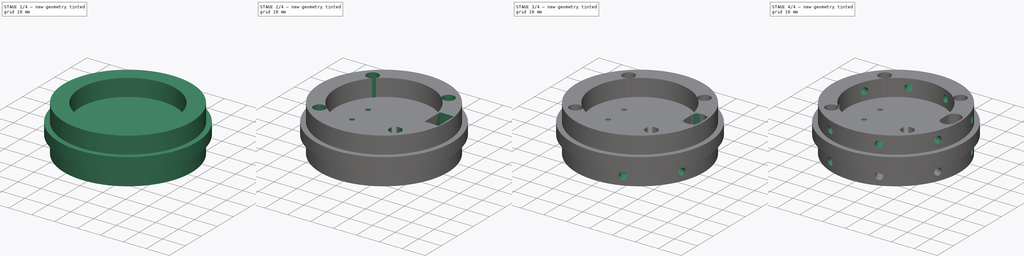
[diagram: build sequence overview — one tinted view per stage of 4, left to right]
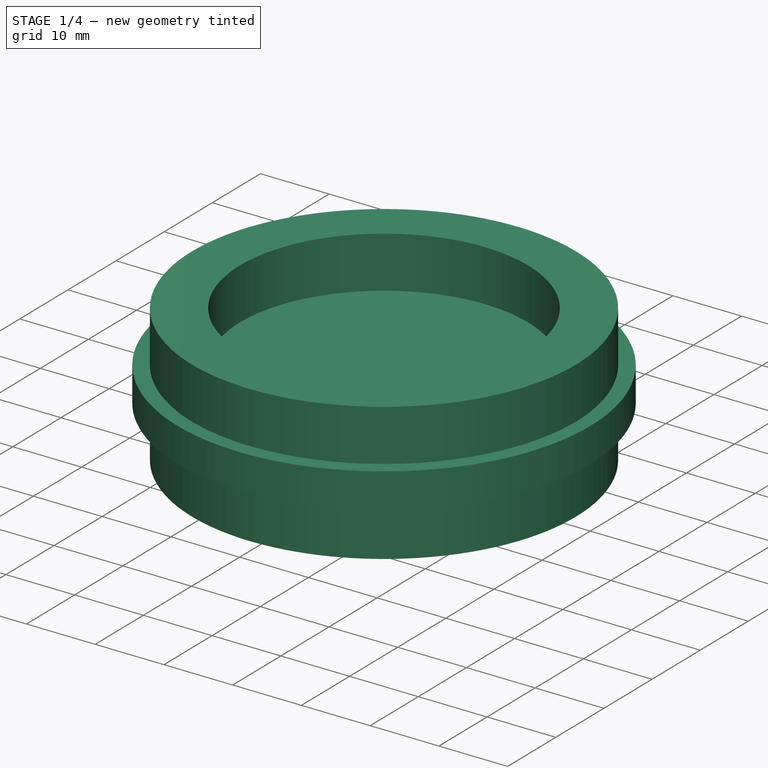
[diagram: stage 1 of 4 — iso view after this stage's code; geometry added in this stage tinted green]
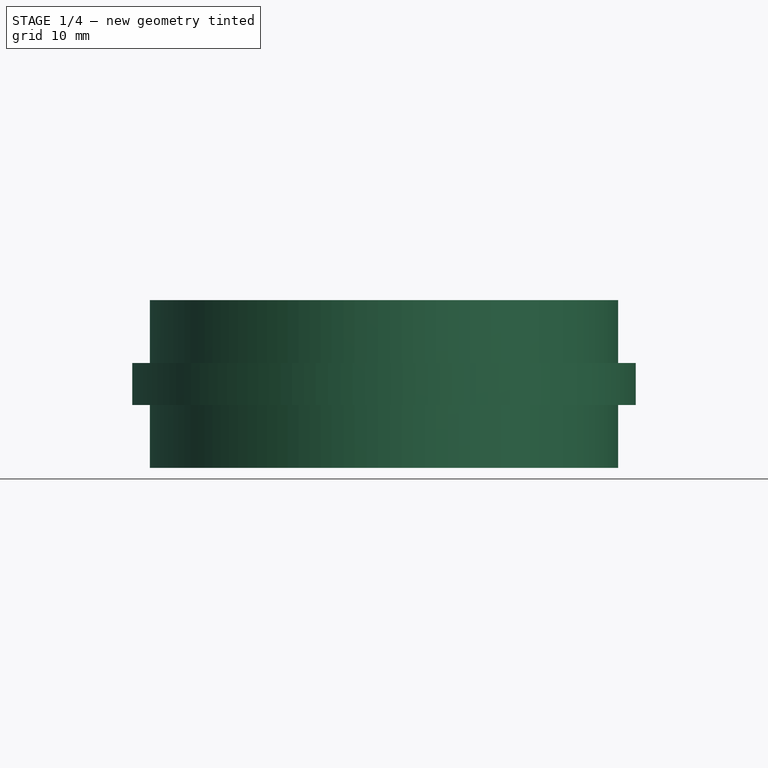
[diagram: stage 1 of 4 — front view after this stage's code; geometry added in this stage tinted green]
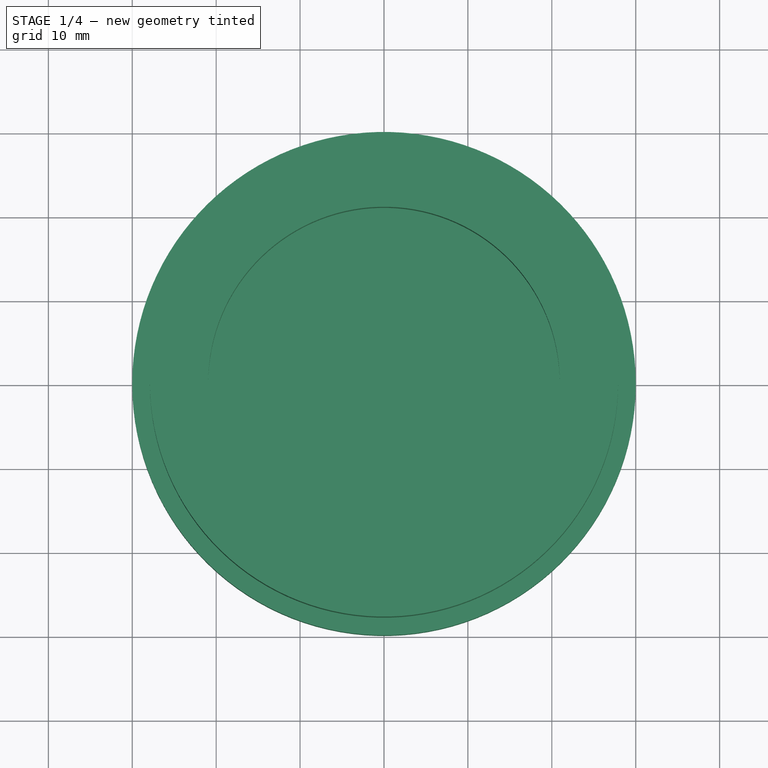
[diagram: stage 1 of 4 — top view after this stage's code; geometry added in this stage tinted green]
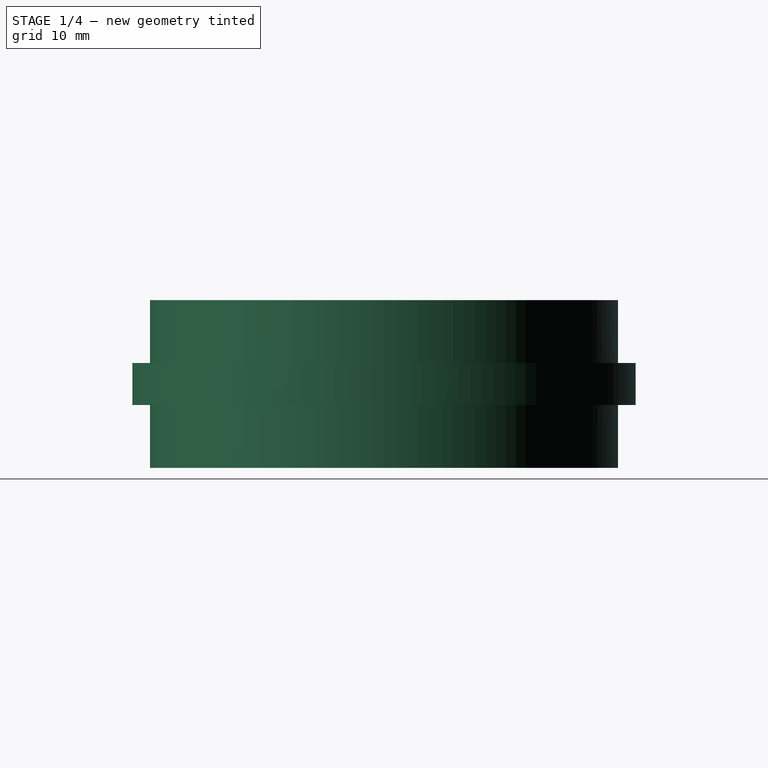
[diagram: stage 1 of 4 — right view after this stage's code; geometry added in this stage tinted green]
FCSTD DOCUMENT  (FreeCAD 1.0R39319 (Git))
Label: low_chute_ret
License: All rights reserved
objects: Sketcher::SketchObject×13, PartDesign::Pocket×8, PartDesign::Plane×4, PartDesign::Pad×3, PartDesign::PolarPattern×2, PartDesign::Fillet×1, PartDesign::Body×1
note: 71 computed .brp shape members not serialized (recipe doc carries the construction recipe); baked Part::Feature solids carry a one-line shape summary decoded from their .brp

FEATURE [Sketcher::SketchObject] Sketch
  ArcFitTolerance = 1e-06
  AttachmentSupport = -> [XY_Plane]
  FullyConstrained = true
  MakeInternals = false
  MapMode = 5
  sketch-geometry (1):
    g0: Circle CenterX=0 CenterY=0 CenterZ=0 NormalX=0 NormalY=0 NormalZ=1 AngleXU=0 Radius=27.9
  constraints (2):
    c: Diameter(g0) = 55.8
    c: Coincident(g0,g-1)
FEATURE [PartDesign::Pad] Pad
  Direction = (0,0,1)
  Length = 7.5
  Length2 = 10
  Profile = -> Sketch
  ReferenceAxis = -> Sketch [N_Axis]
  Refine = true
  Suppressed = false
  Type = 0
FEATURE [Sketcher::SketchObject] Sketch001
  ArcFitTolerance = 1e-06
  AttachmentSupport = -> [Pad]
  FullyConstrained = true
  MakeInternals = false
  MapMode = 5
  Placement = pos=(0,0,7.5) rot=(0,0,1;0rad)
  sketch-geometry (1):
    g0: Circle CenterX=0 CenterY=0 CenterZ=0 NormalX=0 NormalY=0 NormalZ=1 AngleXU=0 Radius=30
  constraints (2):
    c: Diameter(g0) = 60
    c: Coincident(g0,g-1)
FEATURE [PartDesign::Pad] Pad001
  BaseFeature = -> Pad
  Direction = (0,0,1)
  Length = 5
  Length2 = 10
  Profile = -> Sketch001
  ReferenceAxis = -> Sketch001 [N_Axis]
  Refine = true
  Suppressed = false
  Type = 0
FEATURE [Sketcher::SketchObject] Sketch002
  ArcFitTolerance = 1e-06
  AttachmentSupport = -> [Pad001]
  FullyConstrained = true
  MakeInternals = false
  MapMode = 5
  Placement = pos=(0,0,12.5) rot=(0,0,1;0rad)
  sketch-geometry (1):
    g0: Circle CenterX=0 CenterY=0 CenterZ=0 NormalX=0 NormalY=0 NormalZ=1 AngleXU=0 Radius=27.9
  constraints (2):
    c: Diameter(g0) = 55.8
    c: Coincident(g0,g-1)
FEATURE [PartDesign::Pad] Pad002
  BaseFeature = -> Pad001
  Direction = (0,0,1)
  Length = 7.5
  Length2 = 10
  Profile = -> Sketch002
  ReferenceAxis = -> Sketch002 [N_Axis]
  Refine = true
  Suppressed = false
  Type = 0
FEATURE [Sketcher::SketchObject] Sketch003
  ArcFitTolerance = 1e-06
  AttachmentSupport = -> [Pad002]
  FullyConstrained = true
  MakeInternals = false
  MapMode = 5
  Placement = pos=(0,0,20) rot=(0,0,1;0rad)
  sketch-geometry (1):
    g0: Circle CenterX=0 CenterY=0 CenterZ=0 NormalX=0 NormalY=0 NormalZ=1 AngleXU=0 Radius=20.95
  constraints (3):
    c: Diameter(g0) = 41.9
    c: PointOnObject(g0,g-2)
    c: PointOnObject(g0,g-1)
FEATURE [PartDesign::Pocket] Pocket  label="tasca_superiore"
  BaseFeature = -> Pad002
  Direction = (0,0,-1)
  Length = 7.5
  Length2 = 5
  Profile = -> Sketch003
  ReferenceAxis = -> Sketch003 [N_Axis]
  Refine = true
  Suppressed = false
  Type = 0
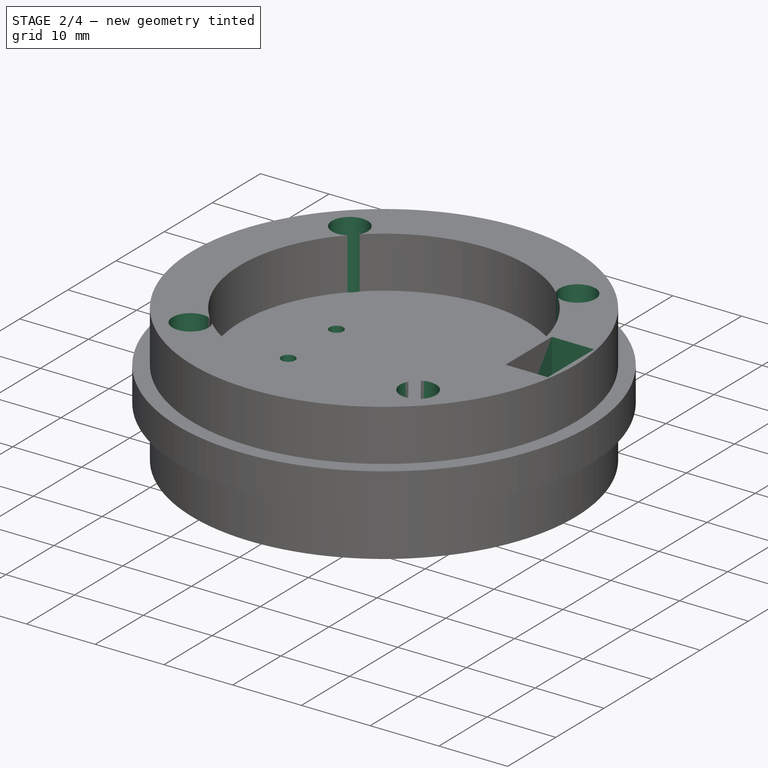
[diagram: stage 2 of 4 — iso view after this stage's code; geometry added in this stage tinted green]
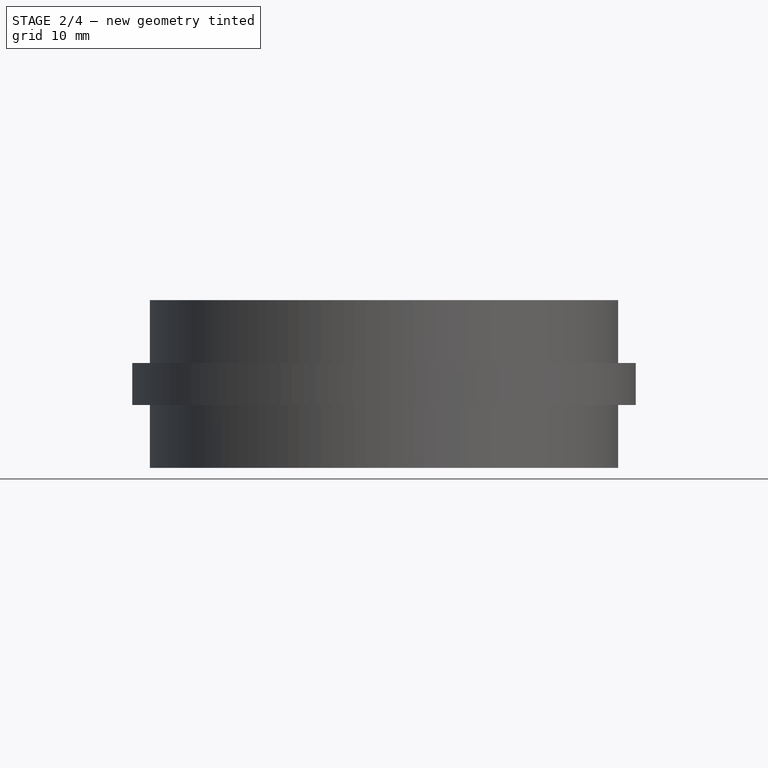
[diagram: stage 2 of 4 — front view after this stage's code; geometry added in this stage tinted green]
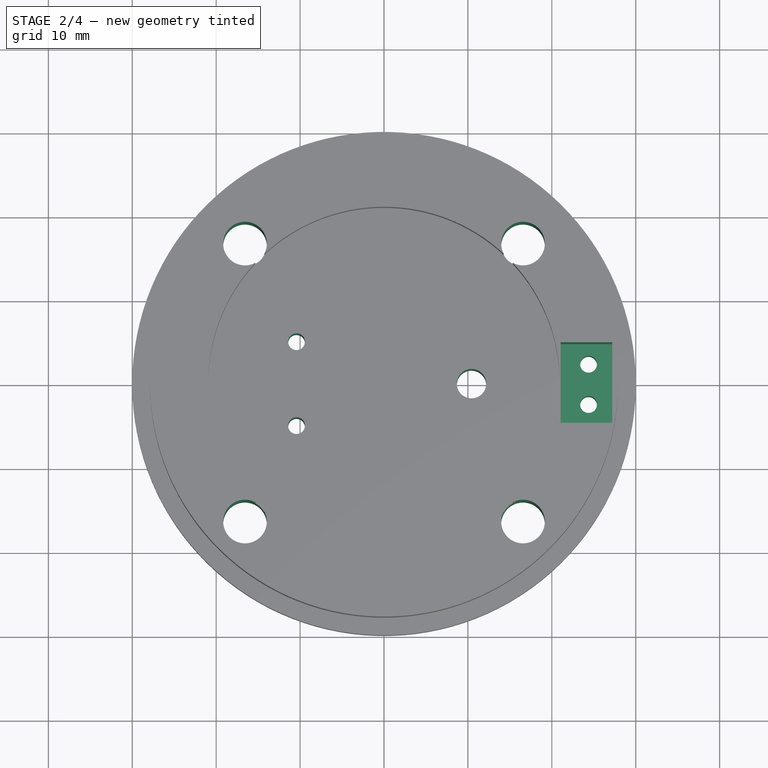
[diagram: stage 2 of 4 — top view after this stage's code; geometry added in this stage tinted green]
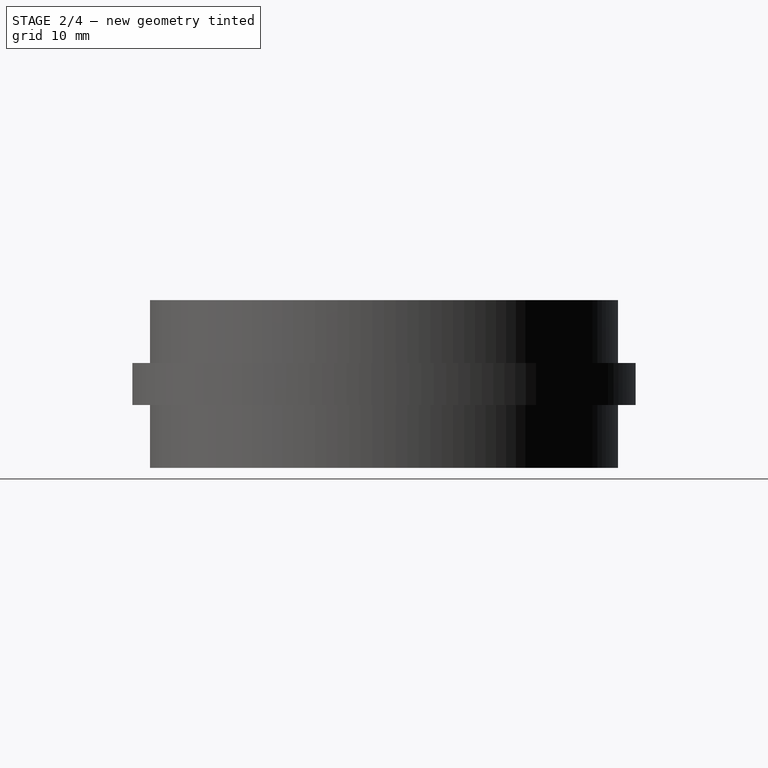
[diagram: stage 2 of 4 — right view after this stage's code; geometry added in this stage tinted green]
FEATURE [Sketcher::SketchObject] Sketch004
  ArcFitTolerance = 1e-06
  AttachmentSupport = -> [Pocket]
  ExternalGeometry = -> [Pocket]
  FullyConstrained = true
  MakeInternals = false
  MapMode = 5
  Placement = pos=(0,0,20) rot=(0,0,1;0rad)
  sketch-geometry (6):
    g0: LineSegment [constr] StartX=0 StartY=0 StartZ=0 EndX=16.566 EndY=16.566 EndZ=0
    g1: Circle CenterX=16.566 CenterY=16.566 CenterZ=0 NormalX=0 NormalY=0 NormalZ=1 AngleXU=0 Radius=2.6
    g2: Circle CenterX=16.566 CenterY=-16.566 CenterZ=0 NormalX=0 NormalY=0 NormalZ=1 AngleXU=0 Radius=2.6
    g3: Circle CenterX=-16.566 CenterY=-16.566 CenterZ=0 NormalX=0 NormalY=0 NormalZ=1 AngleXU=0 Radius=2.6
    g4: Circle CenterX=-16.566 CenterY=16.566 CenterZ=0 NormalX=0 NormalY=0 NormalZ=1 AngleXU=0 Radius=2.6
    g5: LineSegment [constr] StartX=-14.8139 StartY=-14.8139 StartZ=0 EndX=-14.7276 EndY=-14.7275 EndZ=0
  constraints (15):
    c: Distance(g0) = 23.4279
    c: Angle(g-1,g0) = 0.785398
    c: Coincident(g0,g-1)
    c: Diameter(g1) = 5.2
    c: Coincident(g1,g0)
    c: Diameter(g2) = 5.2
    c: Diameter(g3) = 5.2
    c: Diameter(g4) = 5.2
    c: Symmetric(g0,g2,g-1)
    c: Symmetric(g0,g4,g-2)
    c: Symmetric(g4,g3,g-1)
    c: Perpendicular(g-3,g5)
    c: Perpendicular(g3,g5)
    c: PointOnObject(g5,g3)
    c: PointOnObject(g5,g-3)
FEATURE [PartDesign::Pocket] Pocket001  label="sede_tondi"
  BaseFeature = -> Pocket
  Direction = (0,0,-1)
  Length = 5
  Length2 = 5
  Profile = -> Sketch004
  ReferenceAxis = -> Sketch004 [N_Axis]
  Refine = true
  Suppressed = false
  Type = 1
FEATURE [Sketcher::SketchObject] Sketch005
  ArcFitTolerance = 1e-06
  AttachmentSupport = -> [Pocket001]
  ExternalGeometry = -> [Pocket001]
  FullyConstrained = false
  MakeInternals = false
  MapMode = 5
  Placement = pos=(0,0,20) rot=(0,0,1;0rad)
  sketch-geometry (9):
    g0: LineSegment [constr] StartX=0 StartY=0 StartZ=0 EndX=30 EndY=0 EndZ=0
    g1: LineSegment [constr] StartX=24.125 StartY=9.77222 StartZ=0 EndX=24.125 EndY=-9.49919 EndZ=0
    g2: LineSegment StartX=21.05 StartY=4.8 StartZ=0 EndX=27.2 EndY=4.8 EndZ=0
    g3: LineSegment StartX=27.2 StartY=4.8 StartZ=0 EndX=27.2 EndY=-4.8 EndZ=0
    g4: LineSegment StartX=27.2 StartY=-4.8 StartZ=0 EndX=21.05 EndY=-4.8 EndZ=0
    g5: LineSegment StartX=21.05 StartY=-4.8 StartZ=0 EndX=21.05 EndY=4.8 EndZ=0
    g6: LineSegment [constr] StartX=20.85 StartY=5.53579 StartZ=0 EndX=20.85 EndY=-4.8206 EndZ=0
    g7: LineSegment [constr] StartX=27.4 StartY=5.53579 StartZ=0 EndX=27.4 EndY=-5.96685 EndZ=0
    g8: LineSegment [constr] StartX=27.9 StartY=4.55666 StartZ=0 EndX=27.9 EndY=-1.02345 EndZ=0
  constraints (21):
    c: Coincident(g0,g-1)
    c: PointOnObject(g0,g-3)
    c: Perpendicular(g1,g0)
    c: Coincident(g2,g3)
    c: Coincident(g3,g4)
    c: Coincident(g4,g5)
    c: Coincident(g5,g2)
    c: Parallel(g2,g4)
    c: Parallel(g3,g5)
    c: Distance(g2,g2) = 6.15
    c: Distance(g5,g5) = 9.6
    c: Symmetric(g2,g4,g0)
    c: Symmetric(g2,g2,g1)
    c: Parallel(g0,g-1)
    c: Vertical(g6)
    c: Vertical(g7)
    c: Tangent(g6,g-5)
    c: Symmetric(g6,g7,g1)
    c: Vertical(g8)
    c: Tangent(g8,g-4)
    c: DistanceX(g7,g8) = 0.5
FEATURE [PartDesign::Pocket] Pocket002  label="sede_presa_elettrica"
  BaseFeature = -> Pocket001
  Direction = (0,0,-1)
  Length = 12.6
  Length2 = 5
  Profile = -> Sketch005
  ReferenceAxis = -> Sketch005 [N_Axis]
  Refine = true
  Suppressed = false
  Type = 0
FEATURE [Sketcher::SketchObject] Sketch006
  ArcFitTolerance = 1e-06
  FullyConstrained = false
  MakeInternals = false
  MapMode = 5
  Placement = pos=(0,0,12.5) rot=(0,0,1;0rad)
  sketch-geometry (14):
    g0: LineSegment [constr] StartX=24.375 StartY=2.87905 StartZ=0 EndX=24.375 EndY=-2.91235 EndZ=0
    g1: LineSegment [constr] StartX=23.2291 StartY=2.4 StartZ=0 EndX=25.5787 EndY=2.4 EndZ=0
    g2: GeomPoint [constr] X=24.375 Y=2.4 Z=0
    g3: GeomPoint [constr] X=24.375 Y=-2.4 Z=0
    g4: Circle CenterX=24.375 CenterY=2.4 CenterZ=0 NormalX=0 NormalY=0 NormalZ=1 AngleXU=0 Radius=1
    g5: Circle CenterX=24.375 CenterY=-2.4 CenterZ=0 NormalX=0 NormalY=0 NormalZ=1 AngleXU=0 Radius=1
    g6: LineSegment [constr] StartX=10.425 StartY=4.05151 StartZ=0 EndX=10.425 EndY=-4.77268 EndZ=0
    g7: GeomPoint [constr] X=20.85 Y=0 Z=0
    g8: GeomPoint [constr] X=10.425 Y=0 Z=0
    g9: Circle CenterX=10.425 CenterY=0 CenterZ=0 NormalX=0 NormalY=0 NormalZ=1 AngleXU=0 Radius=1.75
    g10: GeomPoint X=-20.85 Y=0 Z=0
    g11: LineSegment [constr] StartX=-10.425 StartY=5 StartZ=0 EndX=-10.425 EndY=-5 EndZ=0
    g12: Circle CenterX=-10.425 CenterY=5 CenterZ=0 NormalX=0 NormalY=0 NormalZ=1 AngleXU=0 Radius=1
    g13: Circle CenterX=-10.425 CenterY=-5 CenterZ=0 NormalX=0 NormalY=0 NormalZ=1 AngleXU=0 Radius=1
  constraints (25):
    c: Symmetric(g-4,g-3,g0)
    c: Horizontal(g1)
    c: PointOnObject(g2,g0)
    c: PointOnObject(g2,g1)
    c: Diameter(g4) = 2
    c: Coincident(g4,g2)
    c: Diameter(g5) = 2
    c: Coincident(g5,g3)
    c: PointOnObject(g7,g-1)
    c: PointOnObject(g7,g-7)
    c: Symmetric(g7,g-1,g6)
    c: PointOnObject(g8,g-1)
    c: PointOnObject(g8,g6)
    c: Diameter(g9) = 3.5
    c: Coincident(g9,g8)
    c: PointOnObject(g10,g-7)
    c: Symmetric(g10,g-1,g11)
    c: Symmetric(g11,g11,g-1)
    c: DistanceY(g-1,g11) = 5
    c: Diameter(g12) = 2
    c: Coincident(g12,g11)
    c: Diameter(g13) = 2
    c: Coincident(g13,g11)
    c: Symmetric(g2,g3,g-1)
    c: DistanceY(g-1,g2) = 2.4
FEATURE [PartDesign::Pocket] Pocket003
  BaseFeature = -> Pocket002
  Direction = (0,0,-1)
  Length = 5
  Length2 = 5
  Profile = -> Sketch006
  ReferenceAxis = -> Sketch006 [N_Axis]
  Refine = true
  Suppressed = false
  Type = 1
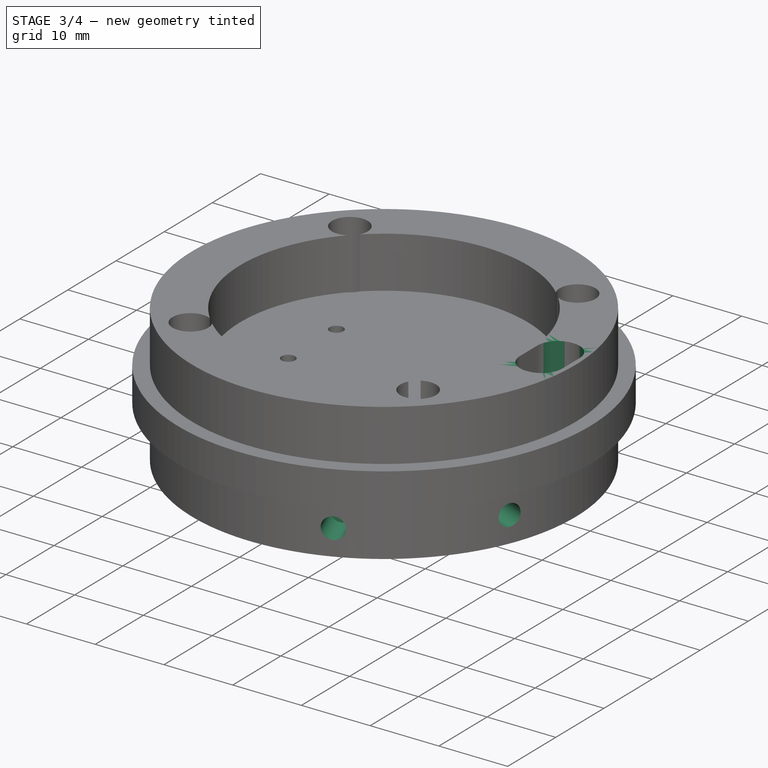
[diagram: stage 3 of 4 — iso view after this stage's code; geometry added in this stage tinted green]
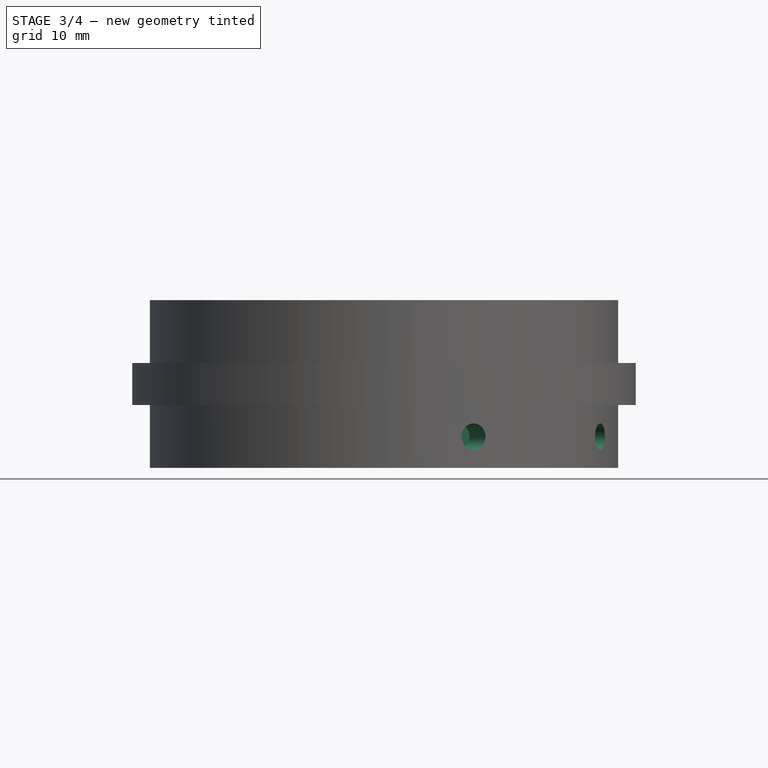
[diagram: stage 3 of 4 — front view after this stage's code; geometry added in this stage tinted green]
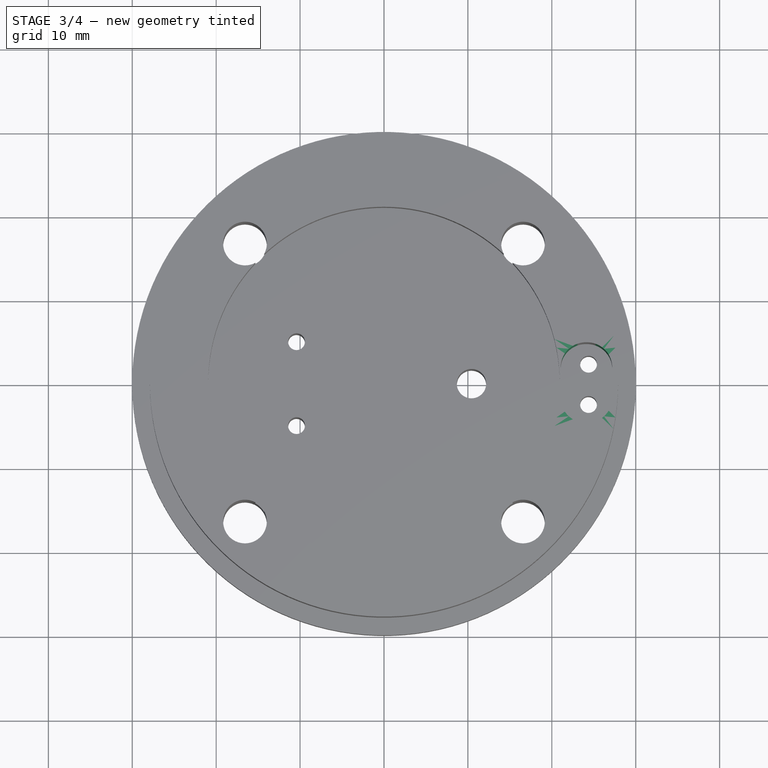
[diagram: stage 3 of 4 — top view after this stage's code; geometry added in this stage tinted green]
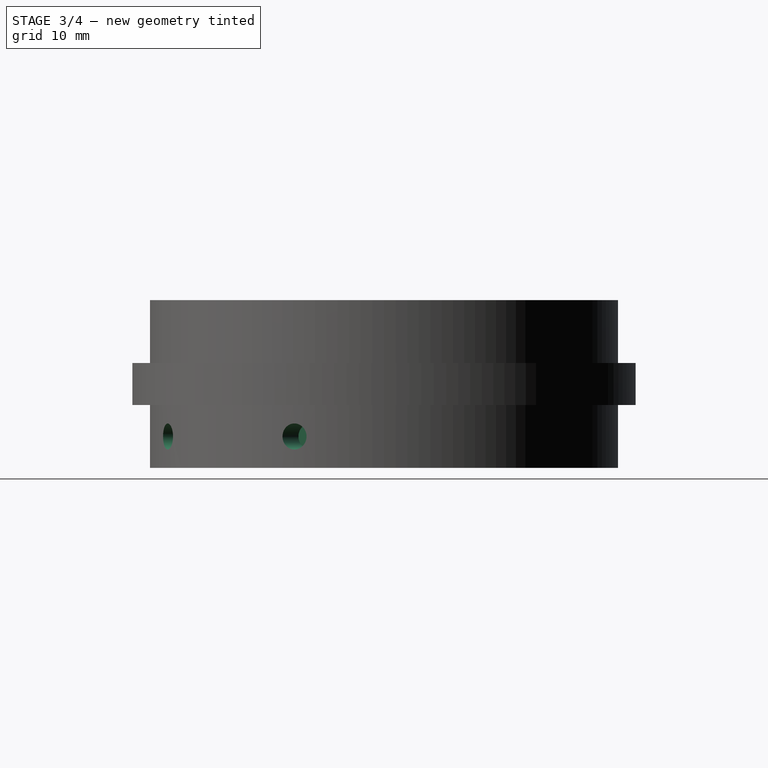
[diagram: stage 3 of 4 — right view after this stage's code; geometry added in this stage tinted green]
FEATURE [PartDesign::Fillet] Fillet
  Base = -> Pocket003 [Edge72,Edge71,Edge73,Edge74]
  BaseFeature = -> Pocket003
  Radius = 3
  Refine = true
  SupportTransform = false
  Suppressed = false
  UseAllEdges = false
FEATURE [Sketcher::SketchObject] Sketch007
  ArcFitTolerance = 1e-06
  AttachmentSupport = -> [Fillet]
  ExternalGeometry = -> [Fillet]
  FullyConstrained = true
  MakeInternals = false
  MapMode = 5
  Placement = pos=(0,0,0) rot=(1,0,0;3.14159rad)
  sketch-geometry (3):
    g0: LineSegment [constr] StartX=0 StartY=0 StartZ=0 EndX=19.7283 EndY=19.7283 EndZ=0
    g1: LineSegment StartX=0 StartY=0 StartZ=0 EndX=10.6769 EndY=25.7762 EndZ=0
    g2: LineSegment StartX=0 StartY=0 StartZ=0 EndX=25.7762 EndY=10.6769 EndZ=0
  constraints (9):
    c: Coincident(g0,g-1)
    c: PointOnObject(g0,g-3)
    c: Angle(g-1,g0) = 0.785398
    c: Coincident(g1,g0)
    c: PointOnObject(g1,g-3)
    c: Coincident(g2,g0)
    c: PointOnObject(g2,g-3)
    c: Angle(g2,g1) = 0.785398
    c: Angle(g0,g1) = 0.392699
FEATURE [PartDesign::Plane] DatumPlane
  AttachmentSupport = -> [Sketch007]
  Length = 90.9153
  MapMode = 7
  Placement = pos=(10.6769,-25.7762,0) rot=(-0.139281,0.700215,0.700215;3.41838rad)
  ResizeMode = 0
  Width = 62.5215
FEATURE [PartDesign::Plane] DatumPlane001
  AttachmentSupport = -> [Sketch007]
  Length = 90.9153
  MapMode = 7
  Placement = pos=(25.7762,-10.6769,0) rot=(-0.427192,0.639338,0.639338;3.94904rad)
  ResizeMode = 0
  Width = 62.5215
FEATURE [Sketcher::SketchObject] Sketch008
  ArcFitTolerance = 1e-06
  AttachmentSupport = -> [DatumPlane]
  FullyConstrained = true
  MakeInternals = false
  MapMode = 5
  Placement = pos=(10.6769,-25.7762,0) rot=(-0.139281,0.700215,0.700215;3.41838rad)
  sketch-geometry (1):
    g0: Circle CenterX=0 CenterY=3.75 CenterZ=0 NormalX=0 NormalY=0 NormalZ=1 AngleXU=0 Radius=1.55
  constraints (3):
    c: Diameter(g0) = 3.1
    c: PointOnObject(g0,g-2)
    c: DistanceY(g-1,g0) = 3.75
FEATURE [Sketcher::SketchObject] Sketch009
  ArcFitTolerance = 1e-06
  AttachmentSupport = -> [DatumPlane001]
  FullyConstrained = true
  MakeInternals = false
  MapMode = 5
  Placement = pos=(25.7762,-10.6769,0) rot=(-0.427192,0.639338,0.639338;3.94904rad)
  sketch-geometry (1):
    g0: Circle CenterX=0 CenterY=3.75 CenterZ=0 NormalX=0 NormalY=0 NormalZ=1 AngleXU=0 Radius=1.55
  constraints (3):
    c: Diameter(g0) = 3.1
    c: PointOnObject(g0,g-2)
    c: DistanceY(g-1,g0) = 3.75
FEATURE [PartDesign::Pocket] Pocket004
  BaseFeature = -> Fillet
  Direction = (0.382683,-0.92388,0)
  Length = 5
  Length2 = 5
  Profile = -> Sketch008
  ReferenceAxis = -> Sketch008 [N_Axis]
  Refine = true
  Reversed = true
  Suppressed = false
  Type = 0
FEATURE [PartDesign::Pocket] Pocket005
  BaseFeature = -> Pocket004
  Direction = (0.92388,-0.382683,1e-16)
  Length = 5
  Length2 = 5
  Profile = -> Sketch009
  ReferenceAxis = -> Sketch009 [N_Axis]
  Refine = true
  Reversed = true
  Suppressed = false
  Type = 0
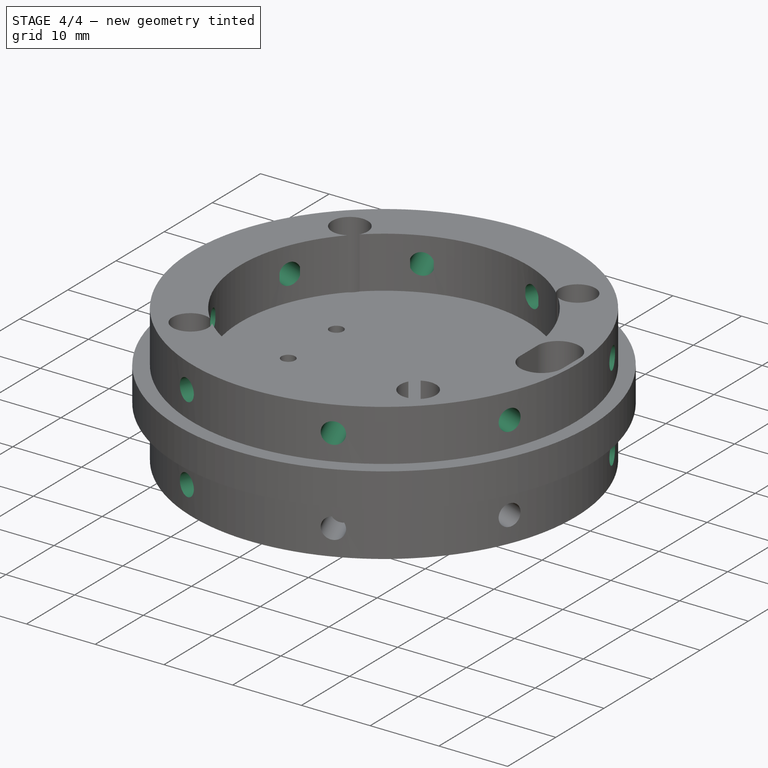
[diagram: stage 4 of 4 — iso view after this stage's code; geometry added in this stage tinted green]
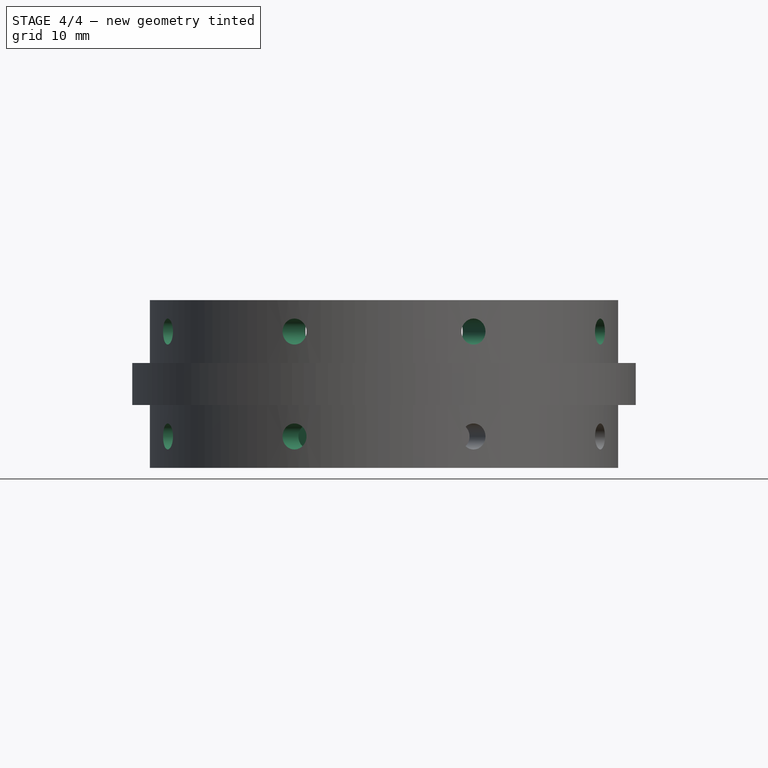
[diagram: stage 4 of 4 — front view after this stage's code; geometry added in this stage tinted green]
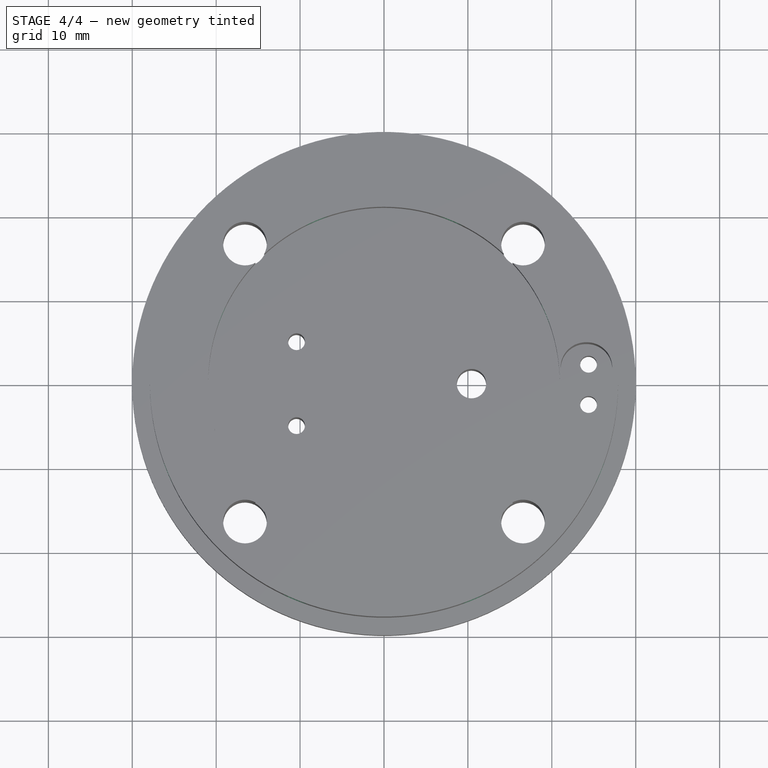
[diagram: stage 4 of 4 — top view after this stage's code; geometry added in this stage tinted green]
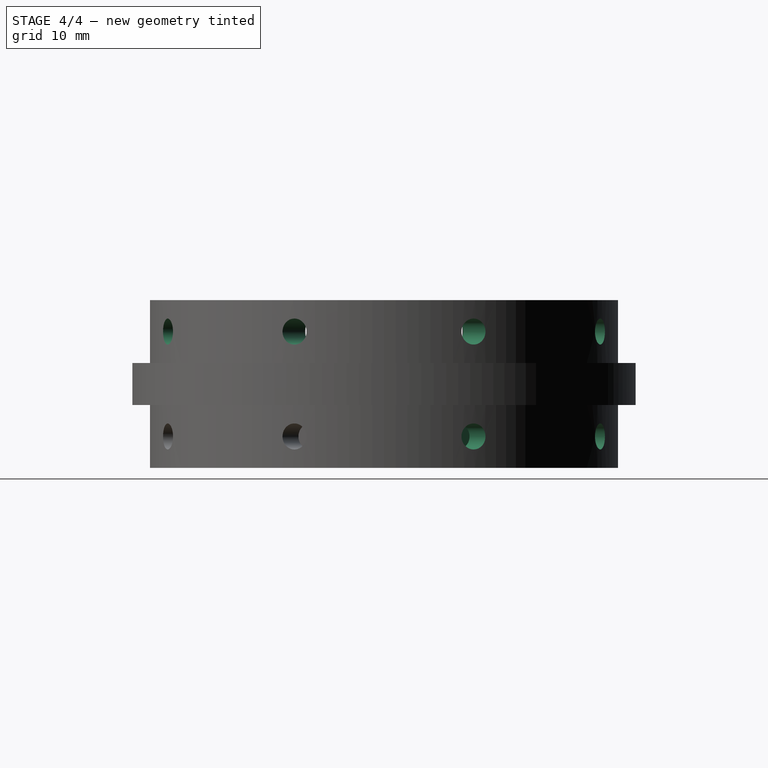
[diagram: stage 4 of 4 — right view after this stage's code; geometry added in this stage tinted green]
FEATURE [PartDesign::PolarPattern] PolarPattern
  Angle = 360
  Axis = -> Z_Axis
  BaseFeature = -> Pocket005
  Mode = 0
  Occurrences = 4
  Offset = 120
  Originals = -> [Pocket004,Pocket005]
  Refine = true
  Suppressed = false
  TransformMode = 0
FEATURE [Sketcher::SketchObject] Sketch010
  ArcFitTolerance = 1e-06
  AttachmentSupport = -> [PolarPattern]
  ExternalGeometry = -> [PolarPattern]
  FullyConstrained = true
  MakeInternals = false
  MapMode = 5
  Placement = pos=(0,0,20) rot=(0,0,1;0rad)
  sketch-geometry (3):
    g0: LineSegment [constr] StartX=0 StartY=0 StartZ=0 EndX=19.7283 EndY=-19.7283 EndZ=0
    g1: LineSegment StartX=0 StartY=0 StartZ=0 EndX=10.6769 EndY=-25.7762 EndZ=0
    g2: LineSegment StartX=0 StartY=0 StartZ=0 EndX=25.7762 EndY=-10.6769 EndZ=0
  constraints (9):
    c: Coincident(g0,g-1)
    c: PointOnObject(g0,g-3)
    c: Coincident(g1,g0)
    c: PointOnObject(g1,g-3)
    c: Coincident(g2,g0)
    c: PointOnObject(g2,g-3)
    c: Angle(g0,g-1) = 0.785398
    c: Angle(g1,g2) = 0.785398
    c: Angle(g0,g2) = 0.392699
FEATURE [PartDesign::Plane] DatumPlane002
  AttachmentSupport = -> [Sketch010]
  Length = 90.9153
  MapMode = 7
  Placement = pos=(10.6769,-25.7762,20) rot=(-0.139281,0.700215,0.700215;3.41838rad)
  ResizeMode = 0
  Width = 62.5215
FEATURE [PartDesign::Plane] DatumPlane003
  AttachmentSupport = -> [Sketch010]
  Length = 90.9153
  MapMode = 7
  Placement = pos=(25.7762,-10.6769,20) rot=(-0.427192,0.639338,0.639338;3.94904rad)
  ResizeMode = 0
  Width = 62.5215
FEATURE [Sketcher::SketchObject] Sketch011
  ArcFitTolerance = 1e-06
  AttachmentSupport = -> [DatumPlane002]
  FullyConstrained = true
  MakeInternals = false
  MapMode = 5
  Placement = pos=(10.6769,-25.7762,20) rot=(-0.139281,0.700215,0.700215;3.41838rad)
  sketch-geometry (1):
    g0: Circle CenterX=0 CenterY=-3.75 CenterZ=0 NormalX=0 NormalY=0 NormalZ=1 AngleXU=0 Radius=1.55
  constraints (3):
    c: Diameter(g0) = 3.1
    c: PointOnObject(g0,g-2)
    c: DistanceY(g0,g-1) = 3.75
FEATURE [Sketcher::SketchObject] Sketch012
  ArcFitTolerance = 1e-06
  AttachmentSupport = -> [DatumPlane003]
  FullyConstrained = true
  MakeInternals = false
  MapMode = 5
  Placement = pos=(25.7762,-10.6769,20) rot=(-0.427192,0.639338,0.639338;3.94904rad)
  sketch-geometry (1):
    g0: Circle CenterX=0 CenterY=-3.75 CenterZ=0 NormalX=0 NormalY=0 NormalZ=1 AngleXU=0 Radius=1.55
  constraints (3):
    c: Diameter(g0) = 3.1
    c: PointOnObject(g0,g-2)
    c: DistanceY(g0,g-1) = 3.75
FEATURE [PartDesign::Pocket] Pocket006
  BaseFeature = -> PolarPattern
  Direction = (0.382683,-0.92388,0)
  Length = 7
  Length2 = 5
  Profile = -> Sketch011
  ReferenceAxis = -> Sketch011 [N_Axis]
  Refine = true
  Reversed = true
  Suppressed = false
  Type = 0
FEATURE [PartDesign::Pocket] Pocket007
  BaseFeature = -> Pocket006
  Direction = (0.92388,-0.382683,-1e-16)
  Length = 7
  Length2 = 5
  Profile = -> Sketch012
  ReferenceAxis = -> Sketch012 [N_Axis]
  Refine = true
  Reversed = true
  Suppressed = false
  Type = 0
FEATURE [PartDesign::PolarPattern] PolarPattern001
  Angle = 360
  Axis = -> Z_Axis
  BaseFeature = -> Pocket007
  Mode = 0
  Occurrences = 4
  Offset = 120
  Originals = -> [Pocket007,Pocket006]
  Refine = true
  Suppressed = false
  TransformMode = 0
FEATURE [PartDesign::Body] Body
  AllowCompound = false
  Group = -> [Sketch,Pad,Sketch001,Pad001,Sketch002,Pad002,Sketch003,Pocket,Sketch004,Pocket001,Sketch005,Pocket002,Sketch006,Pocket003,Fillet,Sketch007,DatumPlane,DatumPlane001,Sketch008,Sketch009,Pocket004,Pocket005,PolarPattern,Sketch010,DatumPlane002,DatumPlane003,Sketch011,Sketch012,Pocket006,Pocket007,PolarPattern001]
  Origin = -> Origin
  Tip = -> PolarPattern001
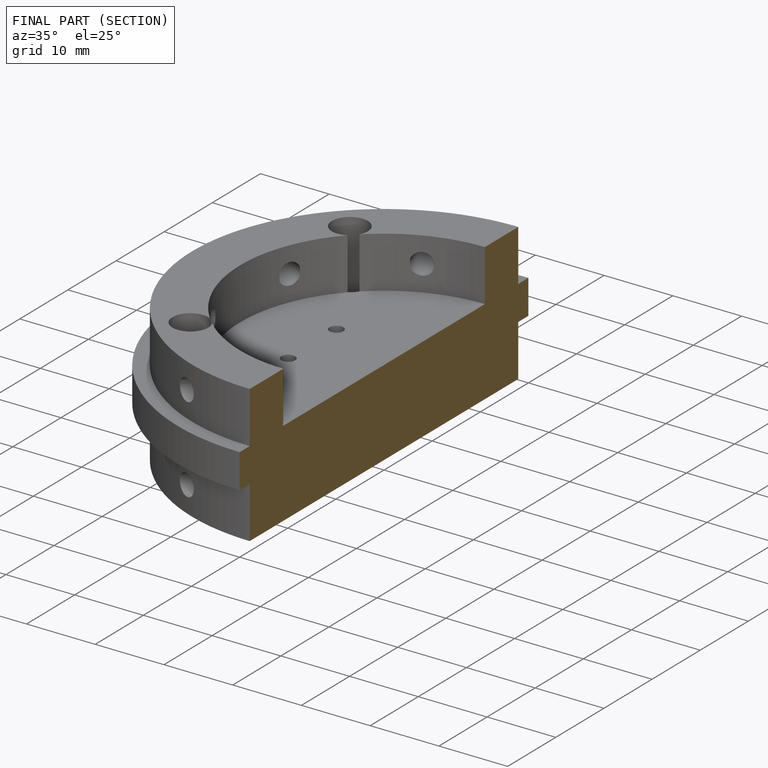
[diagram: finished part — half-section view (interior)]
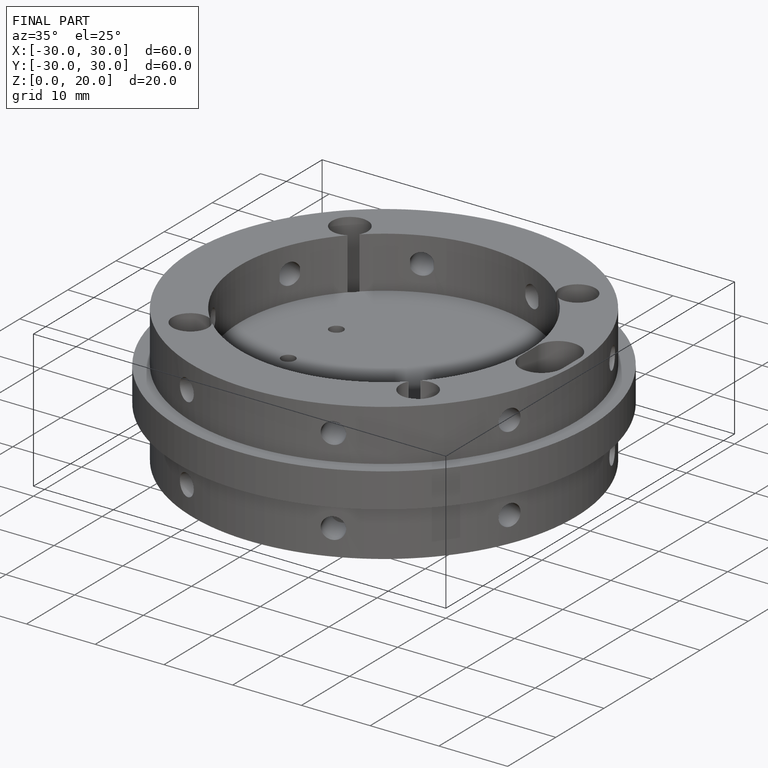
[diagram: finished part — iso view with bounding-box wireframe]
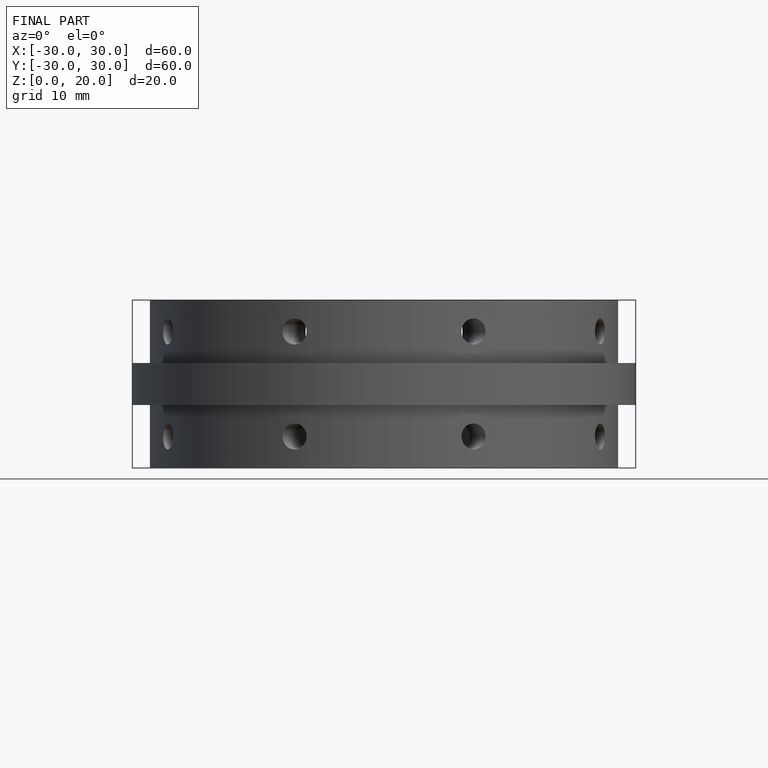
[diagram: finished part — front view with bounding-box wireframe]
